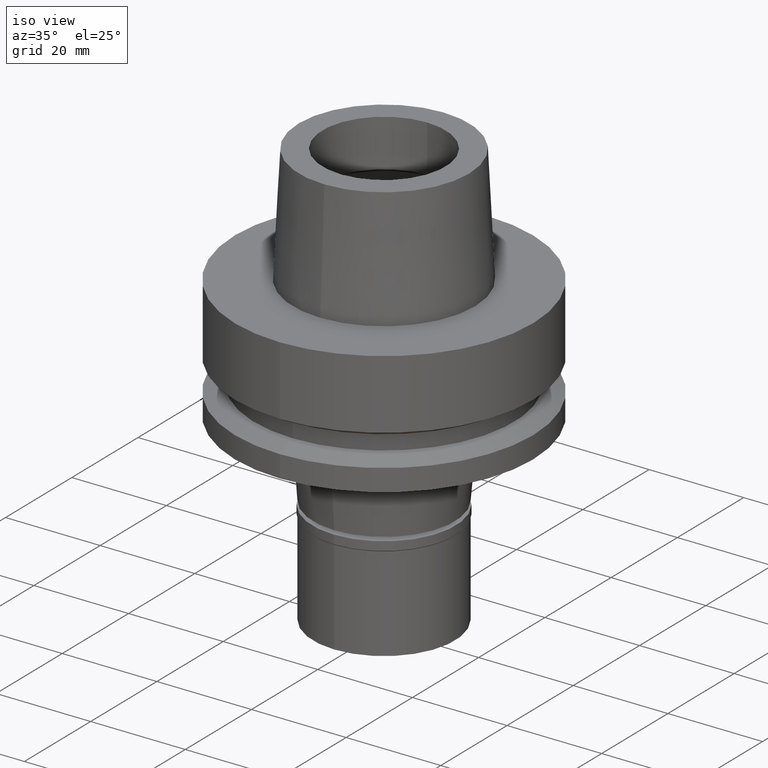
[diagram: clean part render]
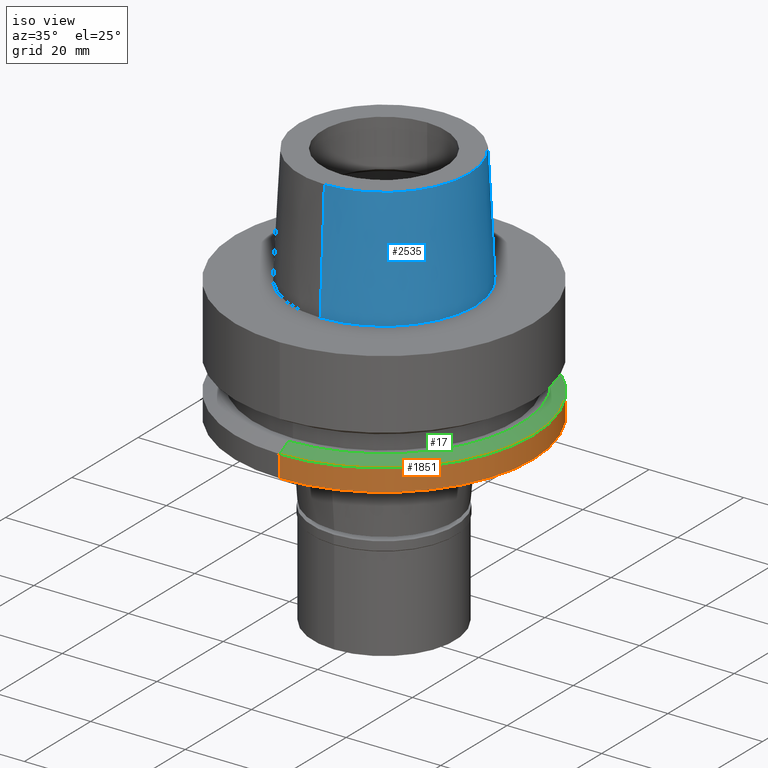
[diagram: same view with three faces highlighted in distinct colors, each labeled with its STEP entity id]
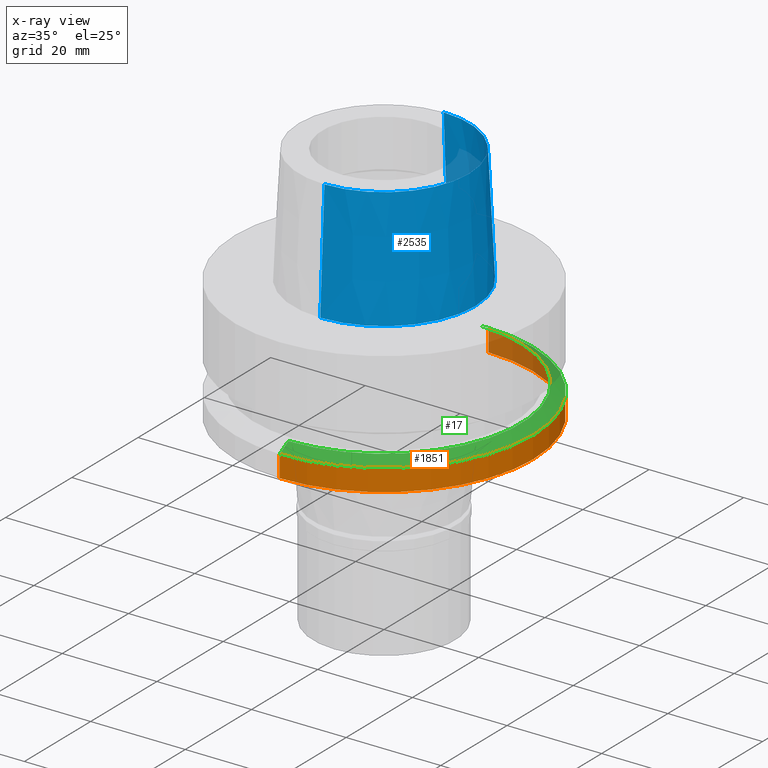
[diagram: x-ray of the same camera — body ghosted, the three highlighted faces saturated]
A machine part, iso view with three faces highlighted in distinct colors.
The next image is the same camera in x-ray (body ghosted, the three faces saturated) — at least one of them is partly hidden behind the body in this view.
Their STEP definitions:

[orange] entity #1851 — the highlighted cylindrical surface (partial cylindrical patch) has radius 31.5 mm, axis along (0, 0, 1).
#40 = EDGE_CURVE ( 'NONE', #1683, #237, #2460, .T. ) ;
#45 = EDGE_CURVE ( 'NONE', #1683, #1893, #2365, .T. ) ;
#118 = VECTOR ( 'NONE', #323, 1000.000000000000000 ) ;
#128 = AXIS2_PLACEMENT_3D ( 'NONE', #2304, #1275, #198 ) ;
#140 = FACE_OUTER_BOUND ( 'NONE', #2681, .T. ) ;
#155 = CARTESIAN_POINT ( 'NONE',  ( 0.0000000000000000000, 31.50000000000000000, -26.00000000000000000 ) ) ;
#198 = DIRECTION ( 'NONE',  ( 0.0000000000000000000, 1.000000000000000000, 0.0000000000000000000 ) ) ;
#237 = VERTEX_POINT ( 'NONE', #1938 ) ;
#252 = ORIENTED_EDGE ( 'NONE', *, *, #40, .T. ) ;
#323 = DIRECTION ( 'NONE',  ( 0.0000000000000000000, 1.321939708906999903E-13, -1.000000000000000000 ) ) ;
#556 = VERTEX_POINT ( 'NONE', #1180 ) ;
#590 = CARTESIAN_POINT ( 'NONE',  ( 0.0000000000000000000, 31.50000000000000000, -21.37749907476000288 ) ) ;
#599 = EDGE_CURVE ( 'NONE', #237, #556, #1394, .T. ) ;
#779 = ORIENTED_EDGE ( 'NONE', *, *, #1912, .T. ) ;
#1065 = DIRECTION ( 'NONE',  ( 0.0000000000000000000, -1.000000000000000000, 0.0000000000000000000 ) ) ;
#1180 = CARTESIAN_POINT ( 'NONE',  ( 0.0000000000000000000, -31.50000000000000000, -26.00000000000000000 ) ) ;
#1275 = DIRECTION ( 'NONE',  ( 0.0000000000000000000, 0.0000000000000000000, 1.000000000000000000 ) ) ;
#1336 = VECTOR ( 'NONE', #2138, 1000.000000000000000 ) ;
#1394 = LINE ( 'NONE', #2262, #118 ) ;
#1606 = CARTESIAN_POINT ( 'NONE',  ( 0.0000000000000000000, 31.50000000000000000, -21.37749907476000288 ) ) ;
#1676 = DIRECTION ( 'NONE',  ( 0.0000000000000000000, 0.0000000000000000000, -1.000000000000000000 ) ) ;
#1683 = VERTEX_POINT ( 'NONE', #1606 ) ;
#1797 = AXIS2_PLACEMENT_3D ( 'NONE', #1920, #2774, #1065 ) ;
#1851 = ADVANCED_FACE ( 'NONE', ( #140 ), #2075, .T. ) ;
#1872 = AXIS2_PLACEMENT_3D ( 'NONE', #2768, #1676, #2581 ) ;
#1893 = VERTEX_POINT ( 'NONE', #155 ) ;
#1912 = EDGE_CURVE ( 'NONE', #556, #1893, #2162, .T. ) ;
#1920 = CARTESIAN_POINT ( 'NONE',  ( 0.0000000000000000000, 0.0000000000000000000, -26.00000000000000000 ) ) ;
#1938 = CARTESIAN_POINT ( 'NONE',  ( 0.0000000000000000000, -31.50000000000000000, -21.37749907476000288 ) ) ;
#2075 = CYLINDRICAL_SURFACE ( 'NONE', #128, 31.50000000000000000 ) ;
#2093 = ORIENTED_EDGE ( 'NONE', *, *, #45, .F. ) ;
#2138 = DIRECTION ( 'NONE',  ( 0.0000000000000000000, -1.321939708906999903E-13, -1.000000000000000000 ) ) ;
#2162 = CIRCLE ( 'NONE', #1797, 31.50000000000000000 ) ;
#2262 = CARTESIAN_POINT ( 'NONE',  ( 0.0000000000000000000, -31.50000000000000000, -21.37749907476000288 ) ) ;
#2301 = ORIENTED_EDGE ( 'NONE', *, *, #599, .T. ) ;
#2304 = CARTESIAN_POINT ( 'NONE',  ( 0.0000000000000000000, 0.0000000000000000000, -62.46499999999999631 ) ) ;
#2365 = LINE ( 'NONE', #590, #1336 ) ;
#2460 = CIRCLE ( 'NONE', #1872, 31.50000000000000000 ) ;
#2581 = DIRECTION ( 'NONE',  ( 0.0000000000000000000, 1.000000000000000000, 0.0000000000000000000 ) ) ;
#2681 = EDGE_LOOP ( 'NONE', ( #252, #2301, #779, #2093 ) ) ;
#2768 = CARTESIAN_POINT ( 'NONE',  ( 0.0000000000000000000, 0.0000000000000000000, -21.37749907476000288 ) ) ;
#2774 = DIRECTION ( 'NONE',  ( 0.0000000000000000000, 0.0000000000000000000, 1.000000000000000000 ) ) ;

[blue] entity #2535 — the highlighted conical surface has half-angle 2.862 deg.
#99 = DIRECTION ( 'NONE',  ( 0.0000000000000000000, 0.0000000000000000000, 1.000000000000000000 ) ) ;
#103 = ORIENTED_EDGE ( 'NONE', *, *, #1371, .F. ) ;
#242 = ORIENTED_EDGE ( 'NONE', *, *, #2292, .T. ) ;
#283 = CARTESIAN_POINT ( 'NONE',  ( 0.0000000000000000000, 0.0000000000000000000, 3.979039320256999774E-13 ) ) ;
#336 = CARTESIAN_POINT ( 'NONE',  ( 0.0000000000000000000, -18.00000182882000033, 25.00000000000000000 ) ) ;
#352 = CARTESIAN_POINT ( 'NONE',  ( 0.0000000000000000000, 19.24999954280000125, 1.882938249763999678E-13 ) ) ;
#373 = CARTESIAN_POINT ( 'NONE',  ( 0.0000000000000000000, 18.00000182882000033, 25.00000000000000000 ) ) ;
#443 = DIRECTION ( 'NONE',  ( 0.0000000000000000000, 0.0000000000000000000, -1.000000000000000000 ) ) ;
#562 = EDGE_CURVE ( 'NONE', #818, #1903, #2466, .T. ) ;
#588 = DIRECTION ( 'NONE',  ( 0.0000000000000000000, 0.04993752584486958745, -0.9987523434327917338 ) ) ;
#598 = CARTESIAN_POINT ( 'NONE',  ( 0.0000000000000000000, -19.24999954280000125, 1.882938249763999678E-13 ) ) ;
#627 = VERTEX_POINT ( 'NONE', #373 ) ;
#681 = VERTEX_POINT ( 'NONE', #352 ) ;
#723 = VECTOR ( 'NONE', #588, 999.9999999999998863 ) ;
#766 = DIRECTION ( 'NONE',  ( 0.0000000000000000000, 1.000000000000000000, 0.0000000000000000000 ) ) ;
#767 = CIRCLE ( 'NONE', #1270, 18.00000182882000033 ) ;
#818 = VERTEX_POINT ( 'NONE', #2680 ) ;
#954 = DIRECTION ( 'NONE',  ( 0.0000000000000000000, -0.04993752584486958745, -0.9987523434327917338 ) ) ;
#1005 = CARTESIAN_POINT ( 'NONE',  ( 0.0000000000000000000, 18.00000182882000033, 25.00000000000000000 ) ) ;
#1069 = ORIENTED_EDGE ( 'NONE', *, *, #2767, .T. ) ;
#1170 = DIRECTION ( 'NONE',  ( 0.0000000000000000000, -1.000000000000000000, 0.0000000000000000000 ) ) ;
#1196 = DIRECTION ( 'NONE',  ( 0.0000000000000000000, 0.0000000000000000000, -1.000000000000000000 ) ) ;
#1226 = CONICAL_SURFACE ( 'NONE', #1944, 18.62500068580999724, 0.04995830450907576964 ) ;
#1270 = AXIS2_PLACEMENT_3D ( 'NONE', #1875, #1196, #766 ) ;
#1371 = EDGE_CURVE ( 'NONE', #627, #681, #2504, .T. ) ;
#1673 = AXIS2_PLACEMENT_3D ( 'NONE', #283, #99, #1170 ) ;
#1875 = CARTESIAN_POINT ( 'NONE',  ( 0.0000000000000000000, 0.0000000000000000000, 25.00000000000000000 ) ) ;
#1903 = VERTEX_POINT ( 'NONE', #598 ) ;
#1944 = AXIS2_PLACEMENT_3D ( 'NONE', #2561, #443, #2375 ) ;
#1968 = FACE_OUTER_BOUND ( 'NONE', #2667, .T. ) ;
#2197 = ORIENTED_EDGE ( 'NONE', *, *, #562, .T. ) ;
#2199 = VECTOR ( 'NONE', #954, 999.9999999999998863 ) ;
#2215 = CIRCLE ( 'NONE', #1673, 19.24999954280000125 ) ;
#2292 = EDGE_CURVE ( 'NONE', #627, #818, #767, .T. ) ;
#2375 = DIRECTION ( 'NONE',  ( 0.0000000000000000000, -1.000000000000000000, 0.0000000000000000000 ) ) ;
#2466 = LINE ( 'NONE', #336, #2199 ) ;
#2504 = LINE ( 'NONE', #1005, #723 ) ;
#2535 = ADVANCED_FACE ( 'NONE', ( #1968 ), #1226, .T. ) ;
#2561 = CARTESIAN_POINT ( 'NONE',  ( 0.0000000000000000000, 0.0000000000000000000, 12.50000000000000000 ) ) ;
#2667 = EDGE_LOOP ( 'NONE', ( #242, #2197, #1069, #103 ) ) ;
#2680 = CARTESIAN_POINT ( 'NONE',  ( 0.0000000000000000000, -18.00000182882000033, 25.00000000000000000 ) ) ;
#2767 = EDGE_CURVE ( 'NONE', #1903, #681, #2215, .T. ) ;

[green] entity #17 — the highlighted conical surface has half-angle 60 deg.
#17 = ADVANCED_FACE ( 'NONE', ( #815 ), #985, .T. ) ;
#40 = EDGE_CURVE ( 'NONE', #1683, #237, #2460, .T. ) ;
#78 = DIRECTION ( 'NONE',  ( 0.0000000000000000000, 1.000000000000000000, 0.0000000000000000000 ) ) ;
#162 = CARTESIAN_POINT ( 'NONE',  ( 0.0000000000000000000, 0.0000000000000000000, -20.62624953738000144 ) ) ;
#177 = DIRECTION ( 'NONE',  ( 0.0000000000000000000, 0.0000000000000000000, -1.000000000000000000 ) ) ;
#189 = EDGE_CURVE ( 'NONE', #602, #1683, #2784, .T. ) ;
#222 = CARTESIAN_POINT ( 'NONE',  ( 0.0000000000000000000, -28.89759526419000224, -19.87500000000000000 ) ) ;
#237 = VERTEX_POINT ( 'NONE', #1938 ) ;
#351 = VERTEX_POINT ( 'NONE', #2627 ) ;
#407 = LINE ( 'NONE', #222, #2110 ) ;
#568 = AXIS2_PLACEMENT_3D ( 'NONE', #162, #177, #2313 ) ;
#571 = VECTOR ( 'NONE', #666, 1000.000000000000000 ) ;
#602 = VERTEX_POINT ( 'NONE', #999 ) ;
#666 = DIRECTION ( 'NONE',  ( 0.0000000000000000000, 0.8660254037843856390, -0.5000000000000918154 ) ) ;
#690 = ORIENTED_EDGE ( 'NONE', *, *, #40, .F. ) ;
#815 = FACE_OUTER_BOUND ( 'NONE', #900, .T. ) ;
#863 = CARTESIAN_POINT ( 'NONE',  ( 0.0000000000000000000, 28.89759526419000224, -19.87500000000000000 ) ) ;
#892 = ORIENTED_EDGE ( 'NONE', *, *, #969, .T. ) ;
#900 = EDGE_LOOP ( 'NONE', ( #1279, #892, #690, #1476 ) ) ;
#969 = EDGE_CURVE ( 'NONE', #351, #237, #407, .T. ) ;
#985 = CONICAL_SURFACE ( 'NONE', #568, 30.19879763209999979, 1.047197551196400456 ) ;
#999 = CARTESIAN_POINT ( 'NONE',  ( 0.0000000000000000000, 28.89759526419000224, -19.87500000000000000 ) ) ;
#1083 = EDGE_CURVE ( 'NONE', #602, #351, #2783, .T. ) ;
#1279 = ORIENTED_EDGE ( 'NONE', *, *, #1083, .T. ) ;
#1476 = ORIENTED_EDGE ( 'NONE', *, *, #189, .F. ) ;
#1606 = CARTESIAN_POINT ( 'NONE',  ( 0.0000000000000000000, 31.50000000000000000, -21.37749907476000288 ) ) ;
#1676 = DIRECTION ( 'NONE',  ( 0.0000000000000000000, 0.0000000000000000000, -1.000000000000000000 ) ) ;
#1683 = VERTEX_POINT ( 'NONE', #1606 ) ;
#1718 = DIRECTION ( 'NONE',  ( 0.0000000000000000000, -0.8660254037843856390, -0.5000000000000918154 ) ) ;
#1872 = AXIS2_PLACEMENT_3D ( 'NONE', #2768, #1676, #2581 ) ;
#1938 = CARTESIAN_POINT ( 'NONE',  ( 0.0000000000000000000, -31.50000000000000000, -21.37749907476000288 ) ) ;
#2013 = DIRECTION ( 'NONE',  ( 0.0000000000000000000, 0.0000000000000000000, -1.000000000000000000 ) ) ;
#2110 = VECTOR ( 'NONE', #1718, 1000.000000000000000 ) ;
#2201 = AXIS2_PLACEMENT_3D ( 'NONE', #2445, #2013, #78 ) ;
#2313 = DIRECTION ( 'NONE',  ( 0.0000000000000000000, -1.000000000000000000, 0.0000000000000000000 ) ) ;
#2445 = CARTESIAN_POINT ( 'NONE',  ( 0.0000000000000000000, 0.0000000000000000000, -19.87500000000000000 ) ) ;
#2460 = CIRCLE ( 'NONE', #1872, 31.50000000000000000 ) ;
#2581 = DIRECTION ( 'NONE',  ( 0.0000000000000000000, 1.000000000000000000, 0.0000000000000000000 ) ) ;
#2627 = CARTESIAN_POINT ( 'NONE',  ( 0.0000000000000000000, -28.89759526419000224, -19.87500000000000000 ) ) ;
#2768 = CARTESIAN_POINT ( 'NONE',  ( 0.0000000000000000000, 0.0000000000000000000, -21.37749907476000288 ) ) ;
#2783 = CIRCLE ( 'NONE', #2201, 28.89759526419000224 ) ;
#2784 = LINE ( 'NONE', #863, #571 ) ;